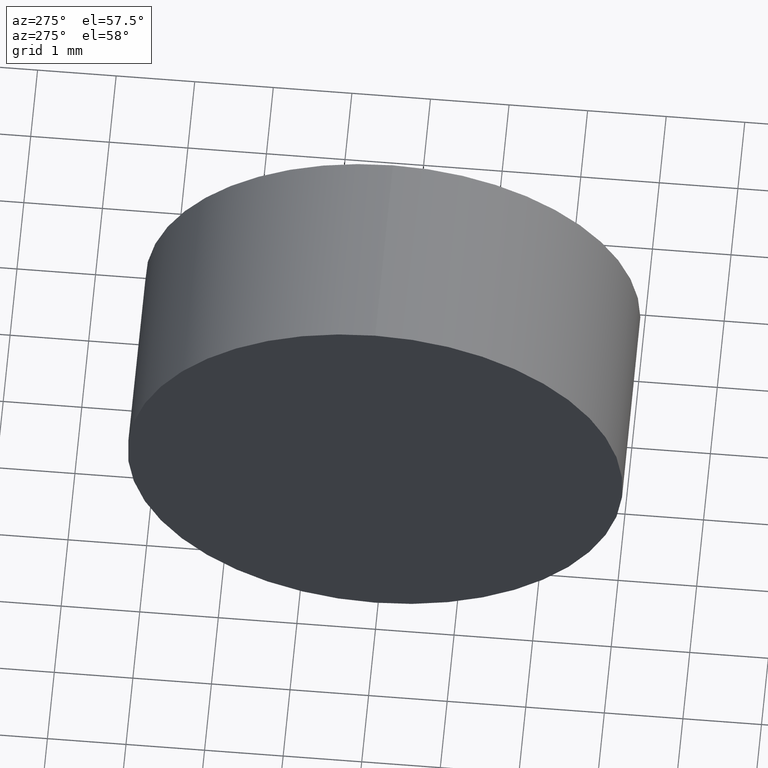
[diagram: clean part render]
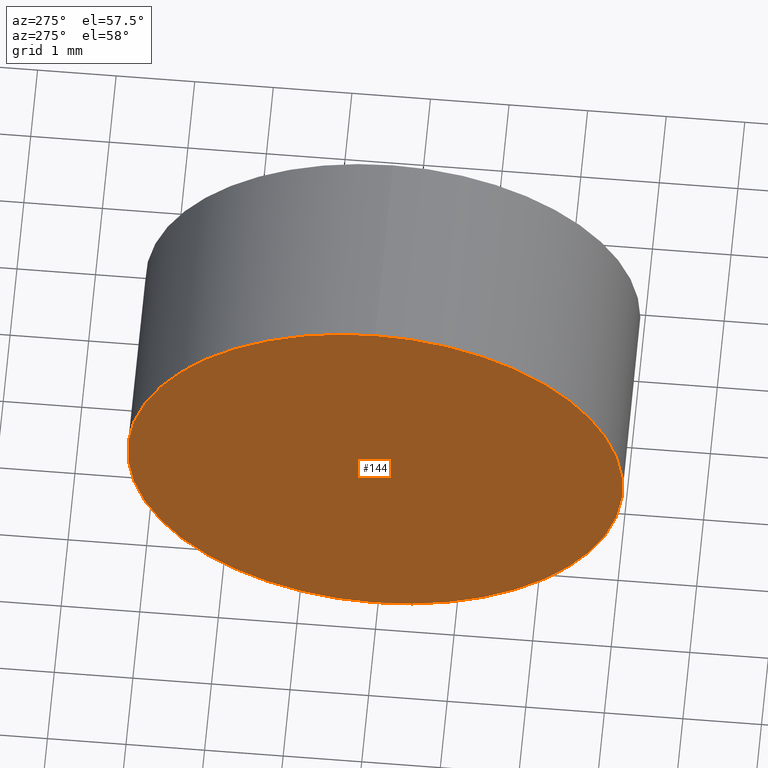
[diagram: same view with one face highlighted and labeled with its STEP entity id]
A machine part, auxiliary view. The second image highlights one B-rep face of the part: STEP entity #144.
In plain terms, the highlighted planar face has unit normal (1, 0, 0).
Its self-contained STEP definition (entity closure, byte-faithful):
#1 = DIRECTION ( 'NONE',  ( 0.0000000000000000000, 0.0000000000000000000, 1.000000000000000000 ) ) ;
#22 = AXIS2_PLACEMENT_3D ( 'NONE', #46, #163, #64 ) ;
#35 = ORIENTED_EDGE ( 'NONE', *, *, #50, .T. ) ;
#37 = FACE_OUTER_BOUND ( 'NONE', #183, .T. ) ;
#46 = CARTESIAN_POINT ( 'NONE',  ( 22.30926883257449200, 13.03112609140304000, 0.0000000000000000000 ) ) ;
#50 = EDGE_CURVE ( 'NONE', #78, #139, #105, .T. ) ;
#60 = CARTESIAN_POINT ( 'NONE',  ( 22.30926883257449200, 13.03112609140304000, -3.149999999999998100 ) ) ;
#64 = DIRECTION ( 'NONE',  ( 0.0000000000000000000, 0.0000000000000000000, 1.000000000000000000 ) ) ;
#70 = CARTESIAN_POINT ( 'NONE',  ( 22.30926883257449200, 13.03112609140304000, 0.0000000000000000000 ) ) ;
#71 = PLANE ( 'NONE',  #141 ) ;
#78 = VERTEX_POINT ( 'NONE', #60 ) ;
#85 = CIRCLE ( 'NONE', #154, 3.149999999999998100 ) ;
#86 = ORIENTED_EDGE ( 'NONE', *, *, #134, .T. ) ;
#88 = CARTESIAN_POINT ( 'NONE',  ( 22.30926883257449200, 13.03112609140304000, 0.0000000000000000000 ) ) ;
#101 = DIRECTION ( 'NONE',  ( 0.0000000000000000000, 0.0000000000000000000, -1.000000000000000000 ) ) ;
#105 = CIRCLE ( 'NONE', #22, 3.149999999999998100 ) ;
#124 = CARTESIAN_POINT ( 'NONE',  ( 22.30926883257449200, 13.03112609140304000, 3.149999999999998100 ) ) ;
#134 = EDGE_CURVE ( 'NONE', #139, #78, #85, .T. ) ;
#139 = VERTEX_POINT ( 'NONE', #124 ) ;
#141 = AXIS2_PLACEMENT_3D ( 'NONE', #70, #142, #101 ) ;
#142 = DIRECTION ( 'NONE',  ( 1.000000000000000000, 0.0000000000000000000, 0.0000000000000000000 ) ) ;
#144 = ADVANCED_FACE ( 'NONE', ( #37 ), #71, .F. ) ;
#154 = AXIS2_PLACEMENT_3D ( 'NONE', #88, #169, #1 ) ;
#163 = DIRECTION ( 'NONE',  ( -1.000000000000000000, -0.0000000000000000000, -0.0000000000000000000 ) ) ;
#169 = DIRECTION ( 'NONE',  ( -1.000000000000000000, -0.0000000000000000000, -0.0000000000000000000 ) ) ;
#183 = EDGE_LOOP ( 'NONE', ( #86, #35 ) ) ;